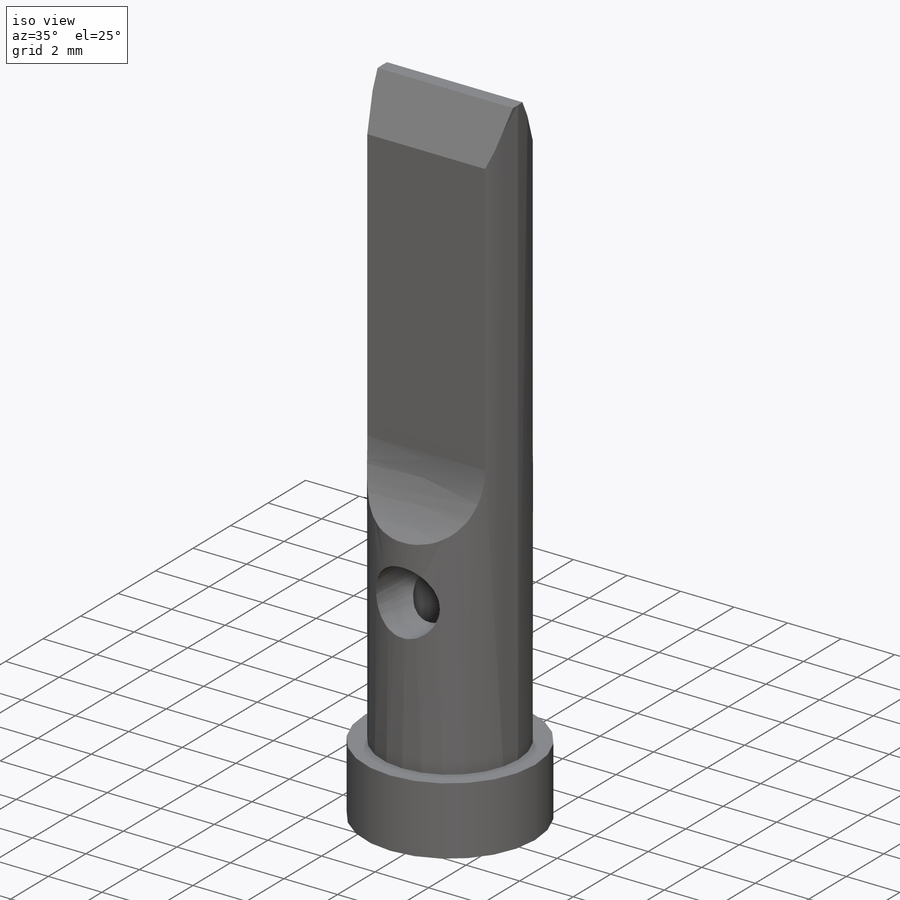
[diagram: iso view]
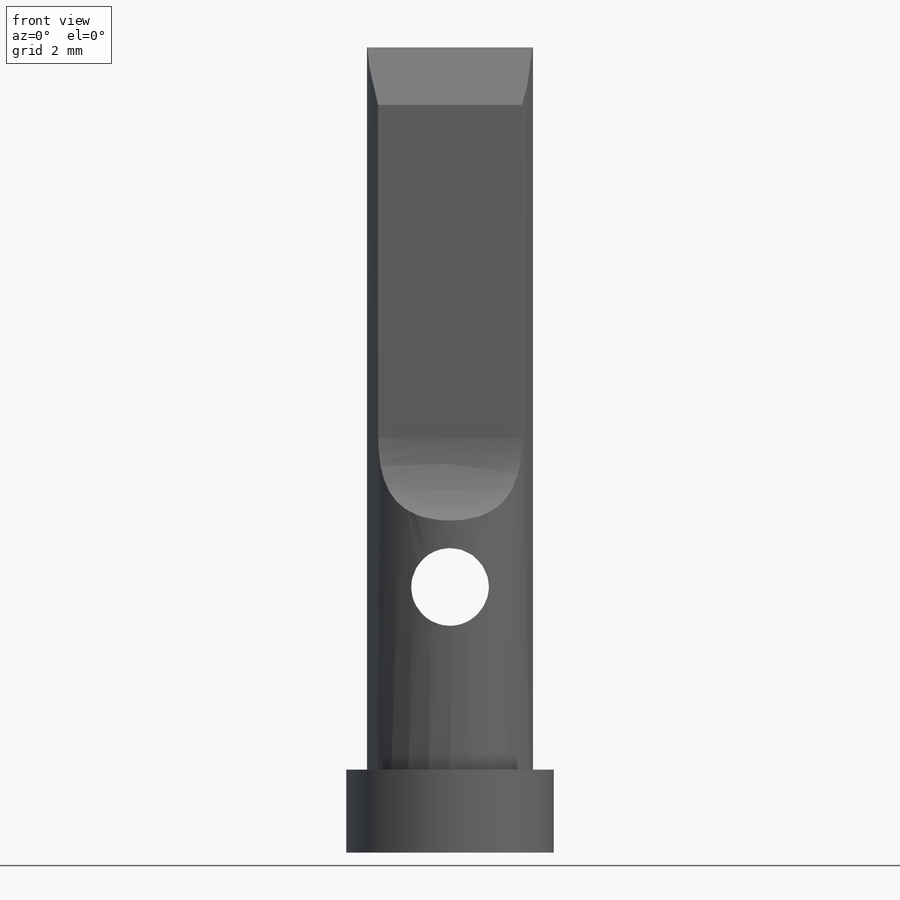
[diagram: front view]
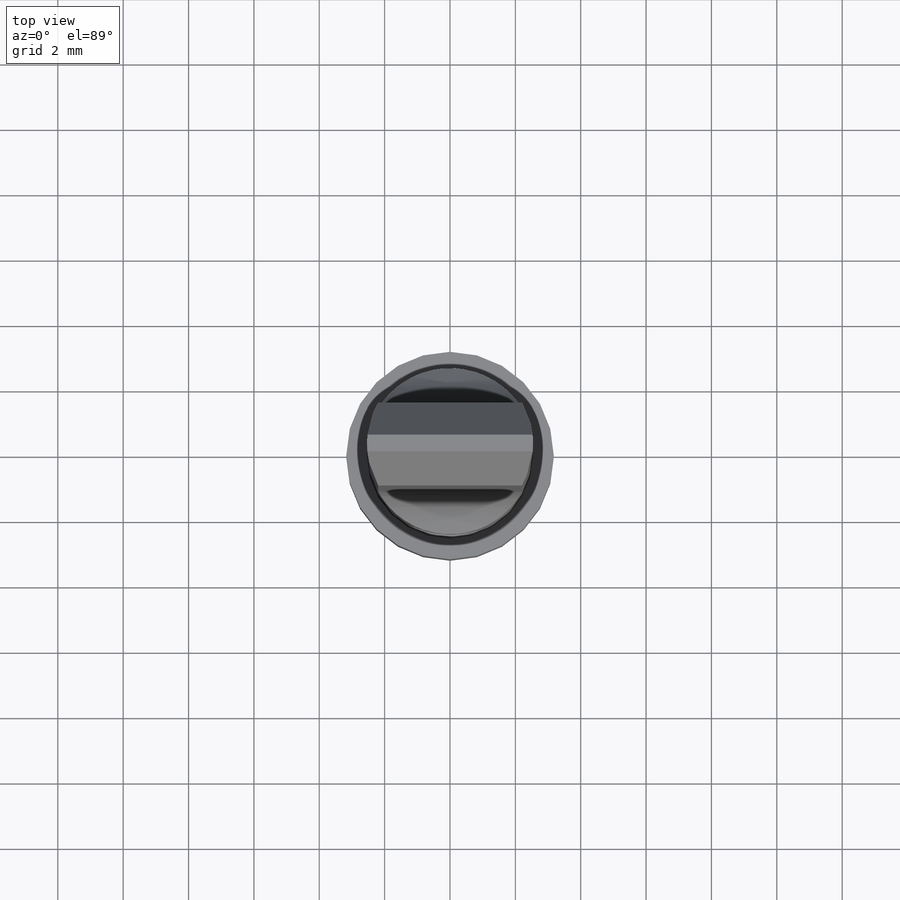
[diagram: top view]
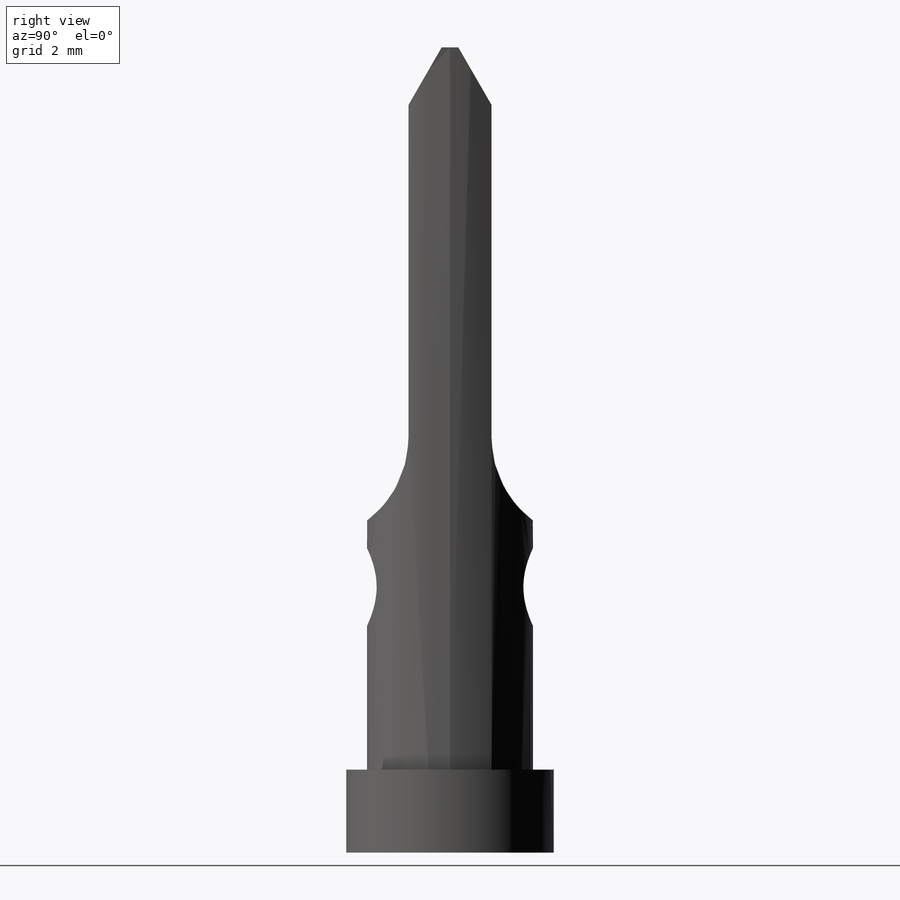
[diagram: right view]
SOLIDWORKS PART (.sldprt)
format: sldprt  version: not decoded by parser v0  size: 546,816 bytes
history: native  units: mm
features: sketch x7, hole x2, material x1, revolve x1, thread x1, plane x1, cut_extrude x1, pattern_circular x1, chamfer x1, extrude x1 + 1 further entry (+13 scaffold rows collapsed)
feature tree (31):
  scaffold x13  (default folders/planes/origin — collapsed)
  material  "6061-T6 Al"
  "Origin"  ID=-1
  sketch  "Sketch1"  dims[D1=24.638mm D2=2.54mm D3=6.35mm D4=5.08mm]
  revolve  "Revolve1"  Angle=360deg
  hole  "#4-40 Tapped Hole1"  Diameter=2.2606mm Depth=8.763mm
  sketch  "Sketch3"
  sketch  "Sketch2"  dims[hole-wizard template sketch: 39 standard entries collapsed; hole parameters kept: c13.Tap Drill Dia.=2.2606mm c13.Tap Drill Depth=8.763mm c13.Near C'Sink Dia.=3.302mm c13.D4=~33.297463mm c13.Near C'Sink Angle=82.0deg c14.D5=~14.816244mm c14.Drill Angle=118.0deg]
  thread  "Hole Thread2"  Diameter=6.858mm  [1 undecoded]
  plane  "Plane1"  Offset=2.54mm
  hole  "3/32 (0.09375) Diameter Hole1"  Diameter=2.38125mm Depth=5.715mm
  sketch  "Sketch5"  dims[D1=8.128mm]
  sketch  "Sketch4"  dims[hole-wizard template sketch: 60 standard entries collapsed; hole parameters kept: c18.Thru Hole Depth=5.715mm]
  sketch  "Sketch6"  dims[c1.D2=~2.870557mm c1.D3=3.175mm c1.D1=1.27mm c2.D2=12.7mm]
  cut_extrude  "Cut-Extrude1"  [1 undecoded]
  pattern_circular  "CirPattern1"  Count=2 Angle=360deg
  chamfer  "Chamfer1"  Distance=1.016mm Angle=60deg
  sketch  "Sketch7"  dims[D1=6.35mm D3=5.842mm D2=~1.143522mm D4=~0.563055mm]
  extrude  "anti rotation feature"  Depth=0.508mm
decode coverage: 13 of 15 modeling features carry decoded parameters; 1 rows unclassified (native names shown)
note: ~ marks probable driven/reference dimensions
note: 2 parameter values undecoded
note: suppression state not decoded; provenance and decode notes live in map.json
